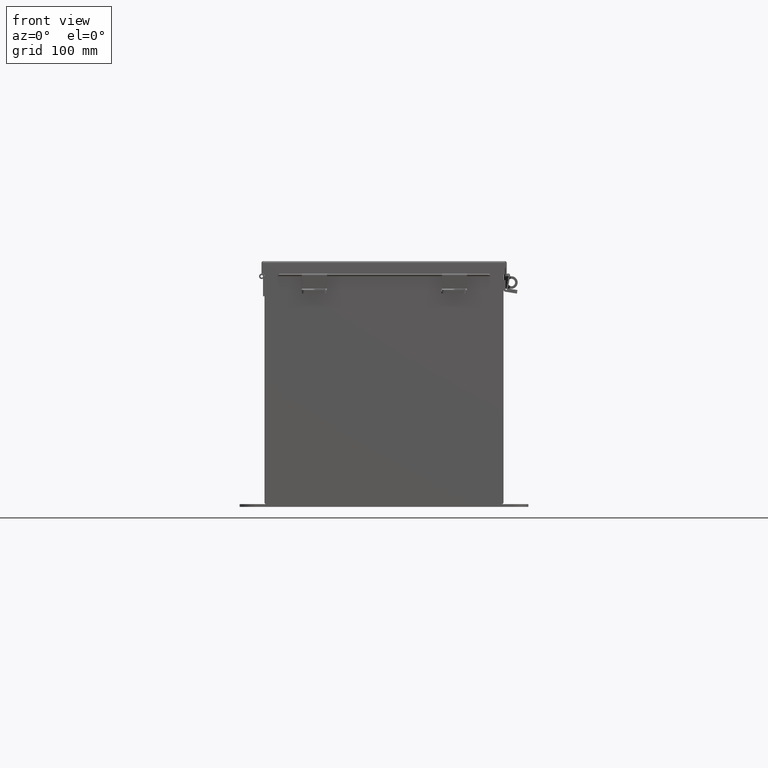
[diagram: clean part render]
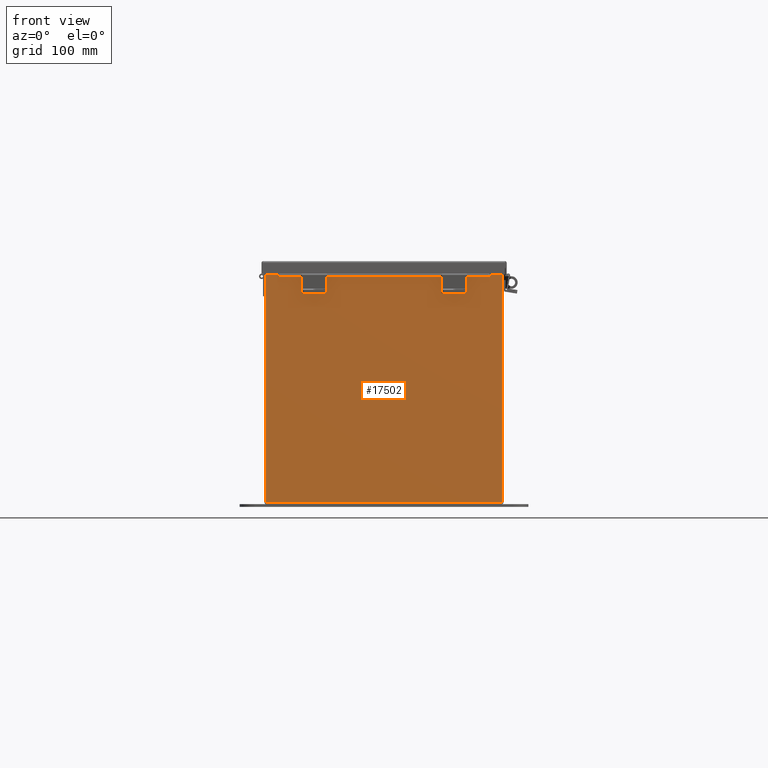
[diagram: same view with one face highlighted and labeled with its STEP entity id]
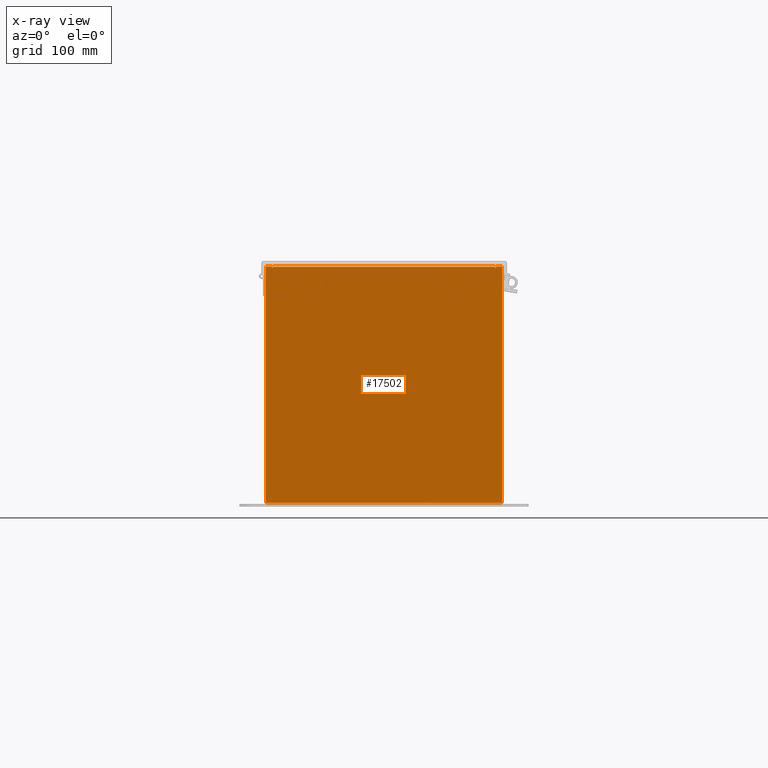
[diagram: x-ray of the same camera — body ghosted, the highlighted face saturated]
A machine part, front view. The second image highlights one B-rep face of the part: STEP entity #17502.
The next image is the same camera in x-ray: the body ghosted, the highlighted face saturated — about 0% of this face is hidden behind the body in this view.
In plain terms, the highlighted planar face has unit normal (-0, 1, -0).
Its self-contained STEP definition (entity closure, byte-faithful):
#52 = ORIENTED_EDGE ( 'NONE', *, *, #1133, .T. ) ;
#654 = DIRECTION ( 'NONE',  ( 1.230560758958866800E-030, 1.000000000000000000, -0.0000000000000000000 ) ) ;
#787 = VERTEX_POINT ( 'NONE', #23382 ) ;
#851 = ORIENTED_EDGE ( 'NONE', *, *, #4829, .F. ) ;
#867 = DIRECTION ( 'NONE',  ( 0.0000000000000000000, 0.0000000000000000000, -1.000000000000000000 ) ) ;
#980 = EDGE_CURVE ( 'NONE', #3613, #4976, #1331, .T. ) ;
#1133 = EDGE_CURVE ( 'NONE', #787, #3613, #13576, .T. ) ;
#1331 = LINE ( 'NONE', #20593, #2629 ) ;
#1514 = LINE ( 'NONE', #3989, #21587 ) ;
#1687 = ORIENTED_EDGE ( 'NONE', *, *, #19444, .T. ) ;
#1878 = CIRCLE ( 'NONE', #6843, 0.01867500000000058700 ) ;
#1994 = DIRECTION ( 'NONE',  ( 1.000000000000000000, 1.230560758958866800E-030, 0.0000000000000000000 ) ) ;
#2095 = DIRECTION ( 'NONE',  ( 0.0000000000000000000, 0.0000000000000000000, -1.000000000000000000 ) ) ;
#2585 = CARTESIAN_POINT ( 'NONE',  ( -5.619650000000019600, 0.0000000000000000000, 5.874949999999996600 ) ) ;
#2629 = VECTOR ( 'NONE', #10173, 39.37007874015748100 ) ;
#2772 = DIRECTION ( 'NONE',  ( 1.230560758958866800E-030, 1.000000000000000000, -0.0000000000000000000 ) ) ;
#2940 = VECTOR ( 'NONE', #23888, 39.37007874015748100 ) ;
#2976 = ORIENTED_EDGE ( 'NONE', *, *, #11139, .F. ) ;
#3613 = VERTEX_POINT ( 'NONE', #10329 ) ;
#3989 = CARTESIAN_POINT ( 'NONE',  ( -5.925300000000000000, 0.0000000000000000000, 5.925300000000002700 ) ) ;
#4145 = CARTESIAN_POINT ( 'NONE',  ( -5.582300000000000000, 2.185478394931410600E-015, 5.912299999999995700 ) ) ;
#4151 = EDGE_CURVE ( 'NONE', #19735, #8642, #24109, .T. ) ;
#4564 = ORIENTED_EDGE ( 'NONE', *, *, #18679, .F. ) ;
#4613 = DIRECTION ( 'NONE',  ( 1.000000000000000000, 1.230560758958866800E-030, 0.0000000000000000000 ) ) ;
#4634 = VERTEX_POINT ( 'NONE', #2585 ) ;
#4767 = CARTESIAN_POINT ( 'NONE',  ( 5.619650000000000000, 0.0000000000000000000, 0.0000000000000000000 ) ) ;
#4829 = EDGE_CURVE ( 'NONE', #23557, #15135, #14759, .T. ) ;
#4976 = VERTEX_POINT ( 'NONE', #13575 ) ;
#5050 = CARTESIAN_POINT ( 'NONE',  ( 5.582299999999976900, 0.0000000000000000000, 5.874950000000003700 ) ) ;
#5456 = CARTESIAN_POINT ( 'NONE',  ( 5.925300000000000000, 0.0000000000000000000, 5.925300000000000000 ) ) ;
#5580 = CARTESIAN_POINT ( 'NONE',  ( -5.619649999999999100, 0.0000000000000000000, 0.0000000000000000000 ) ) ;
#5759 = CARTESIAN_POINT ( 'NONE',  ( -5.925300000000000000, 0.0000000000000000000, 5.925300000000002700 ) ) ;
#6098 = CARTESIAN_POINT ( 'NONE',  ( 5.925300000000000000, 0.0000000000000000000, 5.925300000000000000 ) ) ;
#6476 = AXIS2_PLACEMENT_3D ( 'NONE', #7434, #25475, #13474 ) ;
#6843 = AXIS2_PLACEMENT_3D ( 'NONE', #12707, #654, #14729 ) ;
#6965 = FACE_OUTER_BOUND ( 'NONE', #13024, .T. ) ;
#7434 = CARTESIAN_POINT ( 'NONE',  ( 0.0000000000000000000, 0.0000000000000000000, 0.0000000000000000000 ) ) ;
#8423 = CARTESIAN_POINT ( 'NONE',  ( -5.925300000000000000, 0.0000000000000000000, -5.925299999999999100 ) ) ;
#8642 = VERTEX_POINT ( 'NONE', #10726 ) ;
#8695 = DIRECTION ( 'NONE',  ( 0.0000000000000000000, 0.0000000000000000000, 1.000000000000000000 ) ) ;
#8999 = ORIENTED_EDGE ( 'NONE', *, *, #4151, .F. ) ;
#9071 = CIRCLE ( 'NONE', #12718, 0.01867500000000058700 ) ;
#9193 = CARTESIAN_POINT ( 'NONE',  ( -5.619649999999999100, 0.0000000000000000000, 5.925299999999998200 ) ) ;
#9204 = CARTESIAN_POINT ( 'NONE',  ( -5.582299999999999200, 2.185478394931410600E-015, 5.912299999999995700 ) ) ;
#9242 = CARTESIAN_POINT ( 'NONE',  ( 5.582300000000000000, 0.0000000000000000000, 0.0000000000000000000 ) ) ;
#9425 = VECTOR ( 'NONE', #867, 39.37007874015748100 ) ;
#9449 = PLANE ( 'NONE',  #6476 ) ;
#9685 = LINE ( 'NONE', #5580, #25044 ) ;
#9733 = LINE ( 'NONE', #4767, #15056 ) ;
#10173 = DIRECTION ( 'NONE',  ( 0.0000000000000000000, 0.0000000000000000000, 1.000000000000000000 ) ) ;
#10329 = CARTESIAN_POINT ( 'NONE',  ( -5.925300000000000000, 0.0000000000000000000, -5.925299999999999100 ) ) ;
#10726 = CARTESIAN_POINT ( 'NONE',  ( 5.582300000000000000, 0.0000000000000000000, 5.912300000000002800 ) ) ;
#11100 = EDGE_CURVE ( 'NONE', #4634, #13858, #9685, .T. ) ;
#11139 = EDGE_CURVE ( 'NONE', #15135, #4634, #9071, .T. ) ;
#11239 = CARTESIAN_POINT ( 'NONE',  ( -5.582300000000021400, 0.0000000000000000000, 5.874949999999996600 ) ) ;
#11339 = ORIENTED_EDGE ( 'NONE', *, *, #980, .T. ) ;
#12476 = VECTOR ( 'NONE', #4613, 39.37007874015748100 ) ;
#12707 = CARTESIAN_POINT ( 'NONE',  ( 5.600974999999977800, 0.0000000000000000000, 5.874950000000003700 ) ) ;
#12718 = AXIS2_PLACEMENT_3D ( 'NONE', #24508, #2772, #2095 ) ;
#13009 = ORIENTED_EDGE ( 'NONE', *, *, #24660, .F. ) ;
#13024 = EDGE_LOOP ( 'NONE', ( #13309, #2976, #851, #23291, #8999, #4564, #13009, #1687, #16370, #52, #11339, #24282 ) ) ;
#13309 = ORIENTED_EDGE ( 'NONE', *, *, #11100, .F. ) ;
#13335 = CARTESIAN_POINT ( 'NONE',  ( 5.619649999999999100, 0.0000000000000000000, 5.925300000000004500 ) ) ;
#13474 = DIRECTION ( 'NONE',  ( 0.0000000000000000000, 0.0000000000000000000, -1.000000000000000000 ) ) ;
#13487 = VECTOR ( 'NONE', #8695, 39.37007874015748100 ) ;
#13500 = EDGE_CURVE ( 'NONE', #4976, #13858, #17788, .T. ) ;
#13575 = CARTESIAN_POINT ( 'NONE',  ( -5.925300000000000000, 0.0000000000000000000, 5.925300000000002700 ) ) ;
#13576 = LINE ( 'NONE', #8423, #2940 ) ;
#13858 = VERTEX_POINT ( 'NONE', #9193 ) ;
#14729 = DIRECTION ( 'NONE',  ( 0.0000000000000000000, 0.0000000000000000000, -1.000000000000000000 ) ) ;
#14759 = LINE ( 'NONE', #22800, #9425 ) ;
#15056 = VECTOR ( 'NONE', #18766, 39.37007874015748100 ) ;
#15135 = VERTEX_POINT ( 'NONE', #11239 ) ;
#16370 = ORIENTED_EDGE ( 'NONE', *, *, #16506, .T. ) ;
#16506 = EDGE_CURVE ( 'NONE', #17966, #787, #24519, .T. ) ;
#17502 = ADVANCED_FACE ( 'NONE', ( #6965 ), #9449, .F. ) ;
#17788 = LINE ( 'NONE', #5759, #12476 ) ;
#17966 = VERTEX_POINT ( 'NONE', #6098 ) ;
#17974 = EDGE_CURVE ( 'NONE', #23557, #8642, #18219, .T. ) ;
#18219 = LINE ( 'NONE', #4145, #23528 ) ;
#18251 = VERTEX_POINT ( 'NONE', #13335 ) ;
#18679 = EDGE_CURVE ( 'NONE', #19700, #19735, #1878, .T. ) ;
#18766 = DIRECTION ( 'NONE',  ( 0.0000000000000000000, 0.0000000000000000000, -1.000000000000000000 ) ) ;
#19384 = DIRECTION ( 'NONE',  ( 9.220960942616447800E-017, 0.0000000000000000000, -1.000000000000000000 ) ) ;
#19444 = EDGE_CURVE ( 'NONE', #18251, #17966, #1514, .T. ) ;
#19700 = VERTEX_POINT ( 'NONE', #20800 ) ;
#19735 = VERTEX_POINT ( 'NONE', #5050 ) ;
#19818 = VECTOR ( 'NONE', #19384, 39.37007874015748100 ) ;
#20077 = DIRECTION ( 'NONE',  ( 1.000000000000000000, 1.230560758958866800E-030, -0.0000000000000000000 ) ) ;
#20593 = CARTESIAN_POINT ( 'NONE',  ( -5.925300000000000000, 0.0000000000000000000, 5.925300000000002700 ) ) ;
#20800 = CARTESIAN_POINT ( 'NONE',  ( 5.619649999999978700, 0.0000000000000000000, 5.874950000000003700 ) ) ;
#21587 = VECTOR ( 'NONE', #1994, 39.37007874015748100 ) ;
#22800 = CARTESIAN_POINT ( 'NONE',  ( -5.582299999999999200, 0.0000000000000000000, 0.0000000000000000000 ) ) ;
#23291 = ORIENTED_EDGE ( 'NONE', *, *, #17974, .T. ) ;
#23382 = CARTESIAN_POINT ( 'NONE',  ( 5.925300000000001800, 0.0000000000000000000, -5.925300000000000000 ) ) ;
#23528 = VECTOR ( 'NONE', #20077, 39.37007874015748100 ) ;
#23557 = VERTEX_POINT ( 'NONE', #9204 ) ;
#23888 = DIRECTION ( 'NONE',  ( -1.000000000000000000, -1.231212789688098600E-030, 9.220960942616447800E-017 ) ) ;
#24109 = LINE ( 'NONE', #9242, #13487 ) ;
#24282 = ORIENTED_EDGE ( 'NONE', *, *, #13500, .T. ) ;
#24508 = CARTESIAN_POINT ( 'NONE',  ( -5.600975000000020500, 0.0000000000000000000, 5.874949999999996600 ) ) ;
#24519 = LINE ( 'NONE', #5456, #19818 ) ;
#24596 = DIRECTION ( 'NONE',  ( 0.0000000000000000000, 0.0000000000000000000, 1.000000000000000000 ) ) ;
#24660 = EDGE_CURVE ( 'NONE', #18251, #19700, #9733, .T. ) ;
#25044 = VECTOR ( 'NONE', #24596, 39.37007874015748100 ) ;
#25475 = DIRECTION ( 'NONE',  ( -1.230560758958866800E-030, -1.000000000000000000, -0.0000000000000000000 ) ) ;